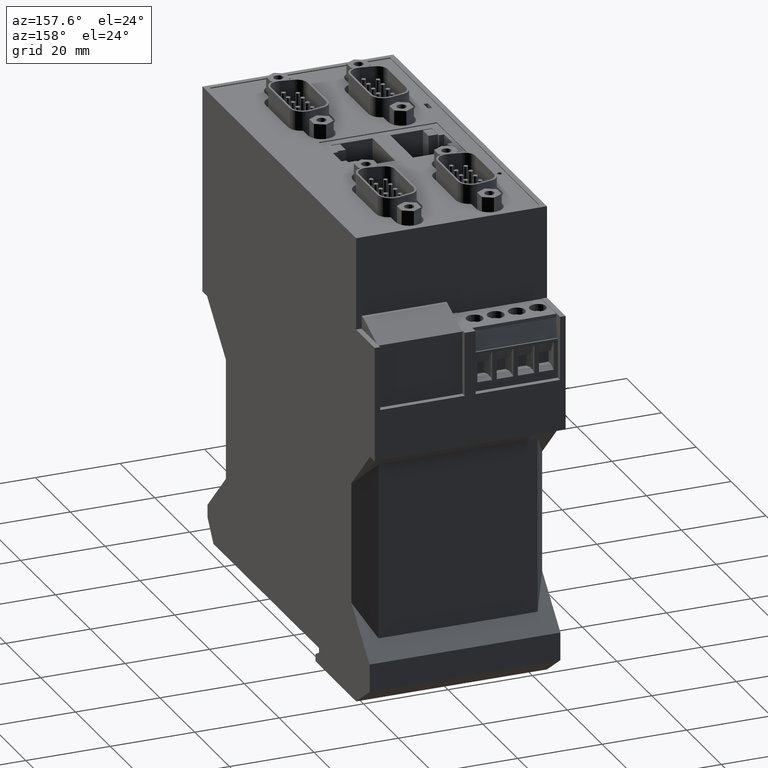
[diagram: clean part render]
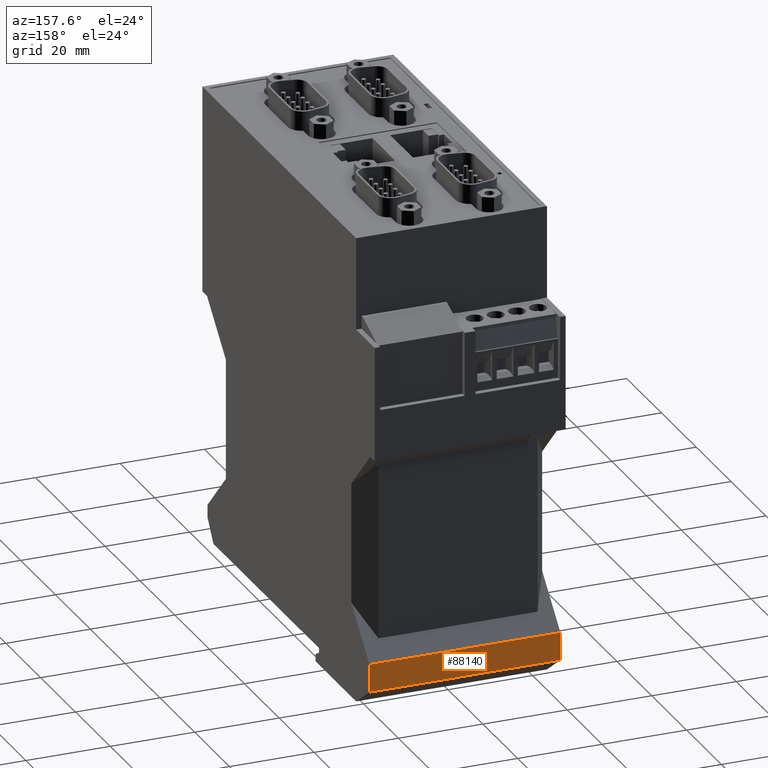
[diagram: same view with one face highlighted and labeled with its STEP entity id]
A machine part, auxiliary view. The second image highlights one B-rep face of the part: STEP entity #88140.
In plain terms, the highlighted planar face has unit normal (0, -1, 0).
Its self-contained STEP definition (entity closure, byte-faithful):
#520=CARTESIAN_POINT('',(29.0500000000947,1.40000000000989,-11.3));
#530=VERTEX_POINT('',#520);
#560=CARTESIAN_POINT('',(29.0500000000947,1.40000000001025,-11.3));
#570=DIRECTION('',(2.15315980533829E-15,1.,0.));
#580=VECTOR('',#570,1.);
#590=LINE('',#560,#580);
#600=CARTESIAN_POINT('',(29.0500000000947,7.99999999999599,-11.3));
#610=VERTEX_POINT('',#600);
#620=EDGE_CURVE('',#530,#610,#590,.T.);
#73640=CARTESIAN_POINT('',(29.0500000000947,7.99999999999599,33.9));
#73650=VERTEX_POINT('',#73640);
#73680=CARTESIAN_POINT('',(29.0500000000947,24.,33.9));
#73690=DIRECTION('',(0.,1.,0.));
#73700=VECTOR('',#73690,1.);
#73710=LINE('',#73680,#73700);
#73720=CARTESIAN_POINT('',(29.0500000000846,1.40000000003149,33.9));
#73730=VERTEX_POINT('',#73720);
#73740=EDGE_CURVE('',#73730,#73650,#73710,.T.);
#87820=CARTESIAN_POINT('',(29.0500000000947,1.40000000000988,-11.3));
#87830=DIRECTION('',(0.,6.34347409244213E-13,1.));
#87840=VECTOR('',#87830,1.);
#87850=LINE('',#87820,#87840);
#87860=EDGE_CURVE('',#530,#73730,#87850,.T.);
#87980=CARTESIAN_POINT('',(29.0500000000947,-8.00000000000051,
-4.40000000000003));
#87990=DIRECTION('',(-1.,0.,0.));
#88000=DIRECTION('',(0.,1.,0.));
#88010=AXIS2_PLACEMENT_3D('',#87980,#87990,#88000);
#88020=PLANE('',#88010);
#88030=ORIENTED_EDGE('',*,*,#620,.T.);
#88040=ORIENTED_EDGE('',*,*,#87860,.F.);
#88050=ORIENTED_EDGE('',*,*,#73740,.F.);
#88060=CARTESIAN_POINT('',(29.0500000000947,7.99999999999599,-11.3));
#88070=DIRECTION('',(0.,0.,1.));
#88080=VECTOR('',#88070,1.);
#88090=LINE('',#88060,#88080);
#88100=EDGE_CURVE('',#610,#73650,#88090,.T.);
#88110=ORIENTED_EDGE('',*,*,#88100,.T.);
#88120=EDGE_LOOP('',(#88110,#88050,#88040,#88030));
#88130=FACE_OUTER_BOUND('',#88120,.T.);
#88140=ADVANCED_FACE('',(#88130),#88020,.F.);